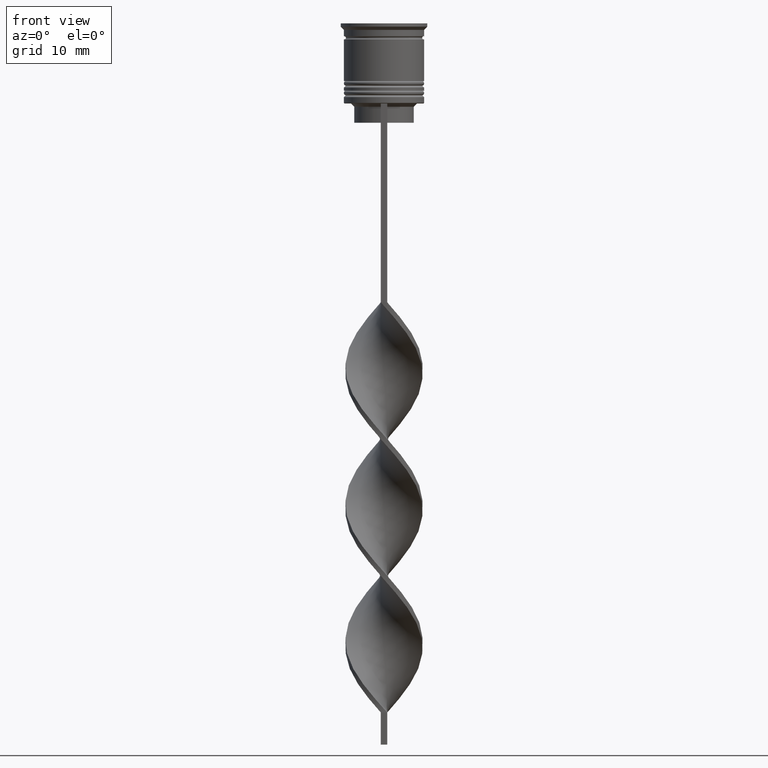
[diagram: clean part render]
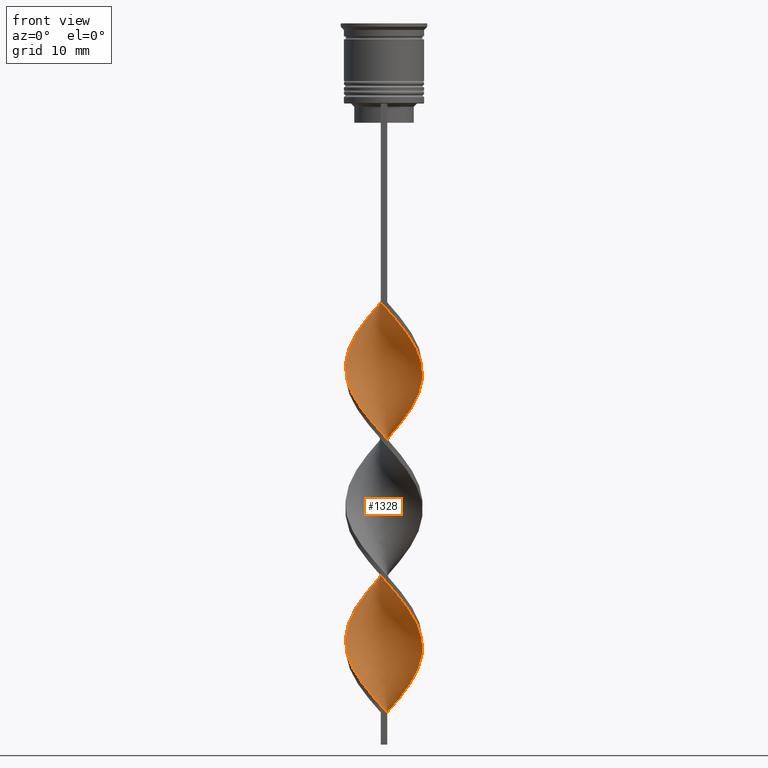
[diagram: same view with one face highlighted and labeled with its STEP entity id]
A machine part, front view. The second image highlights one B-rep face of the part: STEP entity #1328.
In plain terms, the highlighted face is a freeform B-spline surface patch.
Its self-contained STEP definition (entity closure, byte-faithful):
#2 = CARTESIAN_POINT ( 'NONE',  ( 5.988975108237873712, -0.9574036273986642476, -73.85897435897436480 ) ) ;
#5 = CARTESIAN_POINT ( 'NONE',  ( 0.5000000000000005551, 6.000000000000000000, -107.5000000000000000 ) ) ;
#17 = CARTESIAN_POINT ( 'NONE',  ( -5.895984904460662257, -1.219574518580964106, -97.65384615384614619 ) ) ;
#20 = CARTESIAN_POINT ( 'NONE',  ( -4.653870821996361151, -3.819880413333762714, -100.9358974358974308 ) ) ;
#21 = CARTESIAN_POINT ( 'NONE',  ( 5.221935568727516852, 2.996896547440106140, -100.9358974358974308 ) ) ;
#34 = CARTESIAN_POINT ( 'NONE',  ( 2.345611019436010469, 5.545097739941142301, -82.88461538461537259 ) ) ;
#54 = CARTESIAN_POINT ( 'NONE',  ( 4.190053366537511259, 4.384962638200768481, -80.42307692307691980 ) ) ;
#69 = CARTESIAN_POINT ( 'NONE',  ( 4.653870821996362039, 3.819880413333761826, -79.60256410256410220 ) ) ;
#75 = CARTESIAN_POINT ( 'NONE',  ( -0.4999999999999997780, -6.000000000000000000, -43.50000000000000000 ) ) ;
#91 = CARTESIAN_POINT ( 'NONE',  ( -3.018907784180934417, 5.260288998093236579, -68.93589743589743080 ) ) ;
#111 = CARTESIAN_POINT ( 'NONE',  ( 3.231067045089216716, 5.080374567897374405, -61.55128205128204399 ) ) ;
#125 = CARTESIAN_POINT ( 'NONE',  ( 3.018907784180934861, -5.260288998093235691, -47.60256410256408799 ) ) ;
#126 = CARTESIAN_POINT ( 'NONE',  ( 4.352991323530322809, 4.159503159906207337, -59.91025641025640880 ) ) ;
#138 = CARTESIAN_POINT ( 'NONE',  ( -5.895984904460662257, -1.219574518580964106, -54.98717948717948190 ) ) ;
#141 = CARTESIAN_POINT ( 'NONE',  ( -0.4999999999999997780, -6.000000000000000000, -43.50000000000000000 ) ) ;
#145 = CARTESIAN_POINT ( 'NONE',  ( -0.4999999999999997780, 6.000000000000000888, -43.50000000000000000 ) ) ;
#161 = CARTESIAN_POINT ( 'NONE',  ( -0.9504230770123229810, -5.945308736700090968, -63.19230769230768630 ) ) ;
#167 = CARTESIAN_POINT ( 'NONE',  ( -3.604480575359219507, 4.822625818147005639, -69.75641025641024839 ) ) ;
#170 = CARTESIAN_POINT ( 'NONE',  ( 2.345611019436006028, -5.545097739941144077, -46.78205128205127750 ) ) ;
#183 = CARTESIAN_POINT ( 'NONE',  ( -4.858046446425393405, 3.630954320453865680, -49.24358974358973740 ) ) ;
#198 = CARTESIAN_POINT ( 'NONE',  ( 1.921364894438374549, 5.705993072412533174, -105.8589743589743506 ) ) ;
#200 = CARTESIAN_POINT ( 'NONE',  ( 3.604480575359220396, -4.822625818147004750, -48.42307692307691269 ) ) ;
#222 = CARTESIAN_POINT ( 'NONE',  ( 0.2285318993335633819, -6.060710991611129472, -86.98717948717948900 ) ) ;
#224 = CARTESIAN_POINT ( 'NONE',  ( -5.585824691029640299, -2.362838774426345712, -78.78205128205127039 ) ) ;
#234 = CARTESIAN_POINT ( 'NONE',  ( -3.018907784180935305, -5.260288998093234802, -103.3974358974358836 ) ) ;
#237 = CARTESIAN_POINT ( 'NONE',  ( 3.018907784180934861, -5.260288998093235691, -90.26923076923075939 ) ) ;
#238 = CARTESIAN_POINT ( 'NONE',  ( -1.228531899333566768, -5.939289008388869640, -85.34615384615385381 ) ) ;
#248 = CARTESIAN_POINT ( 'NONE',  ( 4.352991323530320145, -4.159503159906210001, -69.75641025641024839 ) ) ;
#251 = CARTESIAN_POINT ( 'NONE',  ( -3.231067045089215384, 5.080374567897375293, -46.78205128205127750 ) ) ;
#252 = CARTESIAN_POINT ( 'NONE',  ( 4.352991323530322809, 4.159503159906207337, -102.5769230769230660 ) ) ;
#262 = CARTESIAN_POINT ( 'NONE',  ( 2.345611019436010469, 5.545097739941142301, -82.88461538461537259 ) ) ;
#266 = CARTESIAN_POINT ( 'NONE',  ( -5.895984904460662257, 1.219574518580968325, -74.67948717948718240 ) ) ;
#285 = CARTESIAN_POINT ( 'NONE',  ( -5.221935568727515964, 2.996896547440107916, -92.73076923076922640 ) ) ;
#286 = CARTESIAN_POINT ( 'NONE',  ( 5.432795012591220107, -2.595137443597922200, -94.37179487179486159 ) ) ;
#359 = FACE_OUTER_BOUND ( 'NONE', #1940, .T. ) ;
#372 = CARTESIAN_POINT ( 'NONE',  ( 3.604480575359220396, -4.822625818147004750, -48.42307692307691269 ) ) ;
#394 = CARTESIAN_POINT ( 'NONE',  ( -6.044068061194097119, -0.5036723384328409825, -54.16666666666666430 ) ) ;
#399 = CARTESIAN_POINT ( 'NONE',  ( 2.345611019436006028, -5.545097739941144077, -46.78205128205127750 ) ) ;
#434 = CARTESIAN_POINT ( 'NONE',  ( 5.895984904460662257, -1.219574518580966105, -53.34615384615383959 ) ) ;
#453 = CARTESIAN_POINT ( 'NONE',  ( -4.858046446425393405, 3.630954320453865680, -49.24358974358974450 ) ) ;
#459 = CARTESIAN_POINT ( 'NONE',  ( 6.016521584715985860, 0.2268656444829105501, -97.65384615384614619 ) ) ;
#477 = CARTESIAN_POINT ( 'NONE',  ( 0.5000000000000005551, 6.000000000000000000, -107.5000000000000000 ) ) ;
#491 = CARTESIAN_POINT ( 'NONE',  ( -4.653870821996361151, -3.819880413333762714, -100.9358974358974308 ) ) ;
#495 = CARTESIAN_POINT ( 'NONE',  ( 0.9504230770123207606, -5.945308736700090968, -87.80769230769230660 ) ) ;
#496 = CARTESIAN_POINT ( 'NONE',  ( 5.221935568727516852, 2.996896547440106140, -58.26923076923076650 ) ) ;
#507 = CARTESIAN_POINT ( 'NONE',  ( 6.016521584715985860, -0.2268656444829146579, -74.67948717948718240 ) ) ;
#511 = CARTESIAN_POINT ( 'NONE',  ( -0.4999999999999997780, -6.000000000000000000, -86.16666666666667140 ) ) ;
#514 = CARTESIAN_POINT ( 'NONE',  ( 1.921364894438374549, 5.705993072412533174, -63.19230769230768630 ) ) ;
#529 = CARTESIAN_POINT ( 'NONE',  ( 2.614197889543179887, -5.472697136436198484, -67.29487179487178139 ) ) ;
#540 = CARTESIAN_POINT ( 'NONE',  ( 6.044068061194097119, 0.5036723384328402053, -75.50000000000000000 ) ) ;
#544 = CARTESIAN_POINT ( 'NONE',  ( 5.787399899633756561, -1.660121200912508366, -73.03846153846153300 ) ) ;
#545 = CARTESIAN_POINT ( 'NONE',  ( -3.018907784180933973, 5.260288998093236579, -68.93589743589743080 ) ) ;
#557 = CARTESIAN_POINT ( 'NONE',  ( 1.672314254691080526, 5.829906481789052464, -83.70512820512820440 ) ) ;
#559 = CARTESIAN_POINT ( 'NONE',  ( 5.895984904460663145, 1.219574518580960998, -76.32051282051281760 ) ) ;
#561 = CARTESIAN_POINT ( 'NONE',  ( 0.2285318993335633819, -6.060710991611130360, -86.98717948717948900 ) ) ;
#597 = CARTESIAN_POINT ( 'NONE',  ( -4.190053366537507706, -4.384962638200770257, -101.7564102564102484 ) ) ;
#612 = CARTESIAN_POINT ( 'NONE',  ( -1.672314254691080304, -5.829906481789052464, -105.0384615384615330 ) ) ;
#635 =( BOUNDED_SURFACE ( )  B_SPLINE_SURFACE ( 1, 2, ( 
 ( #141, #1724, #3418, #3154, #399, #125, #372, #2581, #988, #2822, #1484, #3366, #434, #1220, #1467, #1763, #1446, #1797, #2309, #2055, #1504, #2860, #111, #2605, #1433, #3136, #3380, #2532, #2877, #704, #2567, #91, #167, #1205, #1241, #1175, #2267, #3356, #923, #2552, #2280, #1189, #2844, #935, #2018, #3100, #670, #1745, #952, #2294, #1039, #1257, #511, #222, #495, #1002, #1273, #237, #2421, #2089, #781, #2350, #3435, #2641, #2946, #1562, #459, #3451, #1306, #815, #3471, #762, #2917, #1527, #1852, #1292, #198, #2683, #477 ),
 ( #1320, #2140, #1545, #3172, #251, #745, #2626, #183, #2368, #1819, #2405, #1054, #3487, #1023, #3503, #2161, #2931, #2660, #2111, #1586, #3225, #1876, #2123, #1598, #3194, #798, #2966, #1836, #2390, #529, #3210, #2695, #1073, #3248, #2900, #3262, #544, #1904, #3297, #2747, #559, #846, #3041, #1089, #69, #54, #2474, #2242, #34, #1615, #2177, #828, #2514, #2996, #1634, #2732, #2789, #2441, #2710, #2982, #285, #1358, #1665, #1143, #2768, #2457, #1411, #1155, #1925, #1649, #20, #597, #1390, #885, #1121, #612, #1104, #1943, #3027 ) ),
 .UNSPECIFIED., .F., .F., .F. ) 
 B_SPLINE_SURFACE_WITH_KNOTS ( ( 2, 2 ),
 ( 3, 2, 2, 2, 2, 2, 2, 2, 2, 2, 2, 2, 2, 2, 2, 2, 2, 2, 2, 2, 2, 2, 2, 2, 2, 2, 2, 2, 2, 2, 2, 2, 2, 2, 2, 2, 2, 2, 2, 3 ),
 ( 0.000000000000000000, 1.000000000000000000 ),
 ( 0.000000000000000000, 0.01923076923076923184, 0.03846153846153846367, 0.05769230769230769551, 0.07692307692307692735, 0.09615384615384615918, 0.1153846153846153910, 0.1346153846153846090, 0.1538461538461538547, 0.1730769230769230727, 0.1923076923076923184, 0.2115384615384615363, 0.2307692307692307820, 0.2500000000000000000, 0.2692307692307692180, 0.2884615384615384359, 0.3076923076923077094, 0.3269230769230769273, 0.3461538461538461453, 0.3653846153846153633, 0.3846153846153846367, 0.4038461538461538547, 0.4230769230769230727, 0.4423076923076922906, 0.4615384615384615641, 0.4807692307692307820, 0.5000000000000000000, 0.5192307692307692735, 0.5384615384615384359, 0.5576923076923077094, 0.5769230769230768718, 0.5961538461538461453, 0.6153846153846154188, 0.6346153846153845812, 0.6538461538461538547, 0.6730769230769231282, 0.6923076923076922906, 0.7115384615384615641, 0.7307692307692307265, 0.7500000000000000000 ),
 .UNSPECIFIED. ) 
 GEOMETRIC_REPRESENTATION_ITEM ( )  RATIONAL_B_SPLINE_SURFACE ( (
 ( 1.000000000000000000, 0.9927088740980539727, 1.000000000000000000, 0.9927088740980539727, 1.000000000000000000, 0.9927088740980539727, 1.000000000000000000, 0.9927088740980539727, 1.000000000000000000, 0.9927088740980539727, 1.000000000000000000, 0.9927088740980539727, 1.000000000000000000, 0.9927088740980539727, 1.000000000000000000, 0.9927088740980539727, 1.000000000000000000, 0.9927088740980539727, 1.000000000000000000, 0.9927088740980539727, 1.000000000000000000, 0.9927088740980539727, 1.000000000000000000, 0.9927088740980539727, 1.000000000000000000, 0.9927088740980539727, 1.000000000000000000, 0.9927088740980539727, 1.000000000000000000, 0.9927088740980539727, 1.000000000000000000, 0.9927088740980539727, 1.000000000000000000, 0.9927088740980539727, 1.000000000000000000, 0.9927088740980539727, 1.000000000000000000, 0.9927088740980539727, 1.000000000000000000, 0.9927088740980539727, 1.000000000000000000, 0.9927088740980539727, 1.000000000000000000, 0.9927088740980539727, 1.000000000000000000, 0.9927088740980539727, 1.000000000000000000, 0.9927088740980539727, 1.000000000000000000, 0.9927088740980539727, 1.000000000000000000, 0.9927088740980539727, 1.000000000000000000, 0.9927088740980539727, 1.000000000000000000, 0.9927088740980539727, 1.000000000000000000, 0.9927088740980539727, 1.000000000000000000, 0.9927088740980539727, 1.000000000000000000, 0.9927088740980539727, 1.000000000000000000, 0.9927088740980539727, 1.000000000000000000, 0.9927088740980539727, 1.000000000000000000, 0.9927088740980539727, 1.000000000000000000, 0.9927088740980539727, 1.000000000000000000, 0.9927088740980539727, 1.000000000000000000, 0.9927088740980539727, 1.000000000000000000, 0.9927088740980539727, 1.000000000000000000, 0.9927088740980539727, 1.000000000000000000),
 ( 1.000000000000000000, 0.9927088740980539727, 1.000000000000000000, 0.9927088740980539727, 1.000000000000000000, 0.9927088740980539727, 1.000000000000000000, 0.9927088740980539727, 1.000000000000000000, 0.9927088740980539727, 1.000000000000000000, 0.9927088740980539727, 1.000000000000000000, 0.9927088740980539727, 1.000000000000000000, 0.9927088740980539727, 1.000000000000000000, 0.9927088740980539727, 1.000000000000000000, 0.9927088740980539727, 1.000000000000000000, 0.9927088740980539727, 1.000000000000000000, 0.9927088740980539727, 1.000000000000000000, 0.9927088740980539727, 1.000000000000000000, 0.9927088740980539727, 1.000000000000000000, 0.9927088740980539727, 1.000000000000000000, 0.9927088740980539727, 1.000000000000000000, 0.9927088740980539727, 1.000000000000000000, 0.9927088740980539727, 1.000000000000000000, 0.9927088740980539727, 1.000000000000000000, 0.9927088740980539727, 1.000000000000000000, 0.9927088740980539727, 1.000000000000000000, 0.9927088740980539727, 1.000000000000000000, 0.9927088740980539727, 1.000000000000000000, 0.9927088740980539727, 1.000000000000000000, 0.9927088740980539727, 1.000000000000000000, 0.9927088740980539727, 1.000000000000000000, 0.9927088740980539727, 1.000000000000000000, 0.9927088740980539727, 1.000000000000000000, 0.9927088740980539727, 1.000000000000000000, 0.9927088740980539727, 1.000000000000000000, 0.9927088740980539727, 1.000000000000000000, 0.9927088740980539727, 1.000000000000000000, 0.9927088740980539727, 1.000000000000000000, 0.9927088740980539727, 1.000000000000000000, 0.9927088740980539727, 1.000000000000000000, 0.9927088740980539727, 1.000000000000000000, 0.9927088740980539727, 1.000000000000000000, 0.9927088740980539727, 1.000000000000000000, 0.9927088740980539727, 1.000000000000000000) ) ) 
 REPRESENTATION_ITEM ( '' )  SURFACE ( )  );
#670 = CARTESIAN_POINT ( 'NONE',  ( -4.352991323530323697, -4.159503159906206449, -81.24358974358973740 ) ) ;
#689 = CARTESIAN_POINT ( 'NONE',  ( 2.614197889543183884, 5.472697136436196708, -62.37179487179486870 ) ) ;
#701 = CARTESIAN_POINT ( 'NONE',  ( -0.4999999999999997780, 6.000000000000000888, -43.50000000000000000 ) ) ;
#704 = CARTESIAN_POINT ( 'NONE',  ( -1.672314254691075641, 5.829906481789053352, -67.29487179487178139 ) ) ;
#740 = CARTESIAN_POINT ( 'NONE',  ( 2.614197889543179887, -5.472697136436198484, -67.29487179487178139 ) ) ;
#745 = CARTESIAN_POINT ( 'NONE',  ( -3.847936200635249993, 4.688051999358553878, -47.60256410256408799 ) ) ;
#747 = CARTESIAN_POINT ( 'NONE',  ( 5.117688277455213708, -3.254798188466753839, -50.88461538461537970 ) ) ;
#759 = CARTESIAN_POINT ( 'NONE',  ( 4.858046446425391629, -3.630954320453867012, -70.57692307692306599 ) ) ;
#762 = CARTESIAN_POINT ( 'NONE',  ( 4.858046446425394294, 3.630954320453863016, -101.7564102564102484 ) ) ;
#778 = CARTESIAN_POINT ( 'NONE',  ( -1.672314254691080082, -5.829906481789052464, -105.0384615384615188 ) ) ;
#781 = CARTESIAN_POINT ( 'NONE',  ( 4.653870821996360263, -3.819880413333763158, -92.73076923076922640 ) ) ;
#782 = CARTESIAN_POINT ( 'NONE',  ( -4.653870821996360263, 3.819880413333763158, -71.39743589743588359 ) ) ;
#795 = CARTESIAN_POINT ( 'NONE',  ( -0.2285318993335660742, -6.060710991611130360, -106.6794871794871824 ) ) ;
#798 = CARTESIAN_POINT ( 'NONE',  ( -0.2285318993335660742, -6.060710991611129472, -64.01282051282051100 ) ) ;
#812 = CARTESIAN_POINT ( 'NONE',  ( -4.190053366537507706, -4.384962638200771146, -101.7564102564102484 ) ) ;
#815 = CARTESIAN_POINT ( 'NONE',  ( 5.585824691029640299, 2.362838774426348376, -100.1153846153846274 ) ) ;
#816 = CARTESIAN_POINT ( 'NONE',  ( 5.988975108237873712, 0.9574036273986640255, -98.47435897435896379 ) ) ;
#828 = CARTESIAN_POINT ( 'NONE',  ( 0.2285318993335668514, 6.060710991611129472, -85.34615384615383959 ) ) ;
#829 = CARTESIAN_POINT ( 'NONE',  ( -5.988975108237874601, -0.9574036273986618051, -77.14102564102563520 ) ) ;
#846 = CARTESIAN_POINT ( 'NONE',  ( 5.747901747727230060, 1.935476698729086786, -77.14102564102563520 ) ) ;
#848 = CARTESIAN_POINT ( 'NONE',  ( 3.231067045089216716, 5.080374567897374405, -104.2179487179487012 ) ) ;
#885 = CARTESIAN_POINT ( 'NONE',  ( -3.018907784180935749, -5.260288998093234802, -103.3974358974358694 ) ) ;
#923 = CARTESIAN_POINT ( 'NONE',  ( -5.895984904460662257, 1.219574518580968325, -74.67948717948718240 ) ) ;
#935 = CARTESIAN_POINT ( 'NONE',  ( -5.585824691029640299, -2.362838774426346156, -78.78205128205127039 ) ) ;
#952 = CARTESIAN_POINT ( 'NONE',  ( -3.231067045089219825, -5.080374567897373517, -82.88461538461537259 ) ) ;
#954 = CARTESIAN_POINT ( 'NONE',  ( 1.672314254691077640, -5.829906481789053352, -45.96153846153845990 ) ) ;
#967 = CARTESIAN_POINT ( 'NONE',  ( 0.4999999999999990563, -6.000000000000000000, -64.83333333333332860 ) ) ;
#988 = CARTESIAN_POINT ( 'NONE',  ( 4.653870821996360263, -3.819880413333763158, -50.06410256410256210 ) ) ;
#1002 = CARTESIAN_POINT ( 'NONE',  ( 1.672314254691077862, -5.829906481789053352, -88.62820512820513841 ) ) ;
#1020 = CARTESIAN_POINT ( 'NONE',  ( -2.345611019436007361, -5.545097739941143189, -61.55128205128204399 ) ) ;
#1023 = CARTESIAN_POINT ( 'NONE',  ( -6.044068061194097119, -0.5036723384328408715, -54.16666666666665719 ) ) ;
#1039 = CARTESIAN_POINT ( 'NONE',  ( -1.921364894438377657, -5.705993072412531397, -84.52564102564103621 ) ) ;
#1040 = CARTESIAN_POINT ( 'NONE',  ( 4.653870821996360263, -3.819880413333763158, -92.73076923076922640 ) ) ;
#1051 = CARTESIAN_POINT ( 'NONE',  ( 5.895984904460663145, 1.219574518580960998, -76.32051282051281760 ) ) ;
#1054 = CARTESIAN_POINT ( 'NONE',  ( -5.988975108237873712, 0.9574036273986648027, -52.52564102564103621 ) ) ;
#1055 = CARTESIAN_POINT ( 'NONE',  ( -4.190053366537505042, 4.384962638200774698, -70.57692307692306599 ) ) ;
#1070 = CARTESIAN_POINT ( 'NONE',  ( -3.847936200635249993, 4.688051999358553878, -90.26923076923077360 ) ) ;
#1073 = CARTESIAN_POINT ( 'NONE',  ( 4.352991323530320145, -4.159503159906210001, -69.75641025641024839 ) ) ;
#1076 = CARTESIAN_POINT ( 'NONE',  ( 5.787399899633756561, 1.660121200912505479, -99.29487179487178139 ) ) ;
#1087 = CARTESIAN_POINT ( 'NONE',  ( 5.747901747727230060, 1.935476698729086786, -77.14102564102563520 ) ) ;
#1089 = CARTESIAN_POINT ( 'NONE',  ( 5.117688277455216372, 3.254798188466750730, -78.78205128205127039 ) ) ;
#1104 = CARTESIAN_POINT ( 'NONE',  ( -0.9504230770123229810, -5.945308736700090968, -105.8589743589743506 ) ) ;
#1105 = CARTESIAN_POINT ( 'NONE',  ( -5.221935568727517740, -2.996896547440105252, -79.60256410256410220 ) ) ;
#1121 = CARTESIAN_POINT ( 'NONE',  ( -2.345611019436007361, -5.545097739941143189, -104.2179487179487012 ) ) ;
#1143 = CARTESIAN_POINT ( 'NONE',  ( -5.988975108237873712, 0.9574036273986648027, -95.19230769230769340 ) ) ;
#1155 = CARTESIAN_POINT ( 'NONE',  ( -5.747901747727229171, -1.935476698729088563, -98.47435897435896379 ) ) ;
#1175 = CARTESIAN_POINT ( 'NONE',  ( -5.117688277455211932, 3.254798188466756947, -72.21794871794871540 ) ) ;
#1189 = CARTESIAN_POINT ( 'NONE',  ( -5.988975108237873712, -0.9574036273986618051, -77.14102564102563520 ) ) ;
#1200 = VERTEX_POINT ( 'NONE', #75 ) ;
#1201 = CARTESIAN_POINT ( 'NONE',  ( -1.921364894438372328, 5.705993072412534062, -45.14102564102563520 ) ) ;
#1205 = CARTESIAN_POINT ( 'NONE',  ( -4.190053366537505042, 4.384962638200773810, -70.57692307692306599 ) ) ;
#1220 = CARTESIAN_POINT ( 'NONE',  ( 6.044068061194097119, -0.5036723384328415376, -54.16666666666665719 ) ) ;
#1221 = CARTESIAN_POINT ( 'NONE',  ( 0.5000000000000000000, 2.000000000000000000, -107.5000000000000000 ) ) ;
#1238 = CARTESIAN_POINT ( 'NONE',  ( -5.988975108237873712, 0.9574036273986648027, -52.52564102564102910 ) ) ;
#1241 = CARTESIAN_POINT ( 'NONE',  ( -4.653870821996360263, 3.819880413333763158, -71.39743589743588359 ) ) ;
#1242 = ORIENTED_EDGE ( 'NONE', *, *, #2108, .F. ) ;
#1243 = CARTESIAN_POINT ( 'NONE',  ( 4.190053366537506818, -4.384962638200773810, -49.24358974358974450 ) ) ;
#1253 = CARTESIAN_POINT ( 'NONE',  ( -3.847936200635249993, 4.688051999358553878, -47.60256410256409509 ) ) ;
#1257 = CARTESIAN_POINT ( 'NONE',  ( -1.228531899333566990, -5.939289008388869640, -85.34615384615383959 ) ) ;
#1258 = ORIENTED_EDGE ( 'NONE', *, *, #1570, .T. ) ;
#1270 = CARTESIAN_POINT ( 'NONE',  ( -5.117688277455213708, -3.254798188466752951, -57.44871794871794890 ) ) ;
#1273 = CARTESIAN_POINT ( 'NONE',  ( 2.345611019436006028, -5.545097739941144077, -89.44871794871794179 ) ) ;
#1275 = CARTESIAN_POINT ( 'NONE',  ( 5.585824691029639411, 2.362838774426348376, -57.44871794871794890 ) ) ;
#1288 = CARTESIAN_POINT ( 'NONE',  ( 5.432795012591221884, 2.595137443597920868, -77.96153846153845279 ) ) ;
#1289 = VECTOR ( 'NONE', #3474, 1000.000000000000000 ) ;
#1292 = CARTESIAN_POINT ( 'NONE',  ( 2.614197889543183884, 5.472697136436196708, -105.0384615384615330 ) ) ;
#1293 = CARTESIAN_POINT ( 'NONE',  ( 5.585824691029639411, 2.362838774426348376, -100.1153846153846132 ) ) ;
#1296 = CARTESIAN_POINT ( 'NONE',  ( -0.4999999999999997780, -6.000000000000000000, -43.50000000000000000 ) ) ;
#1303 = CARTESIAN_POINT ( 'NONE',  ( -0.9504230770123229810, -5.945308736700090968, -105.8589743589743506 ) ) ;
#1306 = CARTESIAN_POINT ( 'NONE',  ( 5.787399899633756561, 1.660121200912505479, -99.29487179487178139 ) ) ;
#1307 = CARTESIAN_POINT ( 'NONE',  ( -4.352991323530323697, -4.159503159906206449, -81.24358974358973740 ) ) ;
#1320 = CARTESIAN_POINT ( 'NONE',  ( -0.4999999999999997780, 6.000000000000000000, -43.50000000000000000 ) ) ;
#1328 = ADVANCED_FACE ( 'NONE', ( #359 ), #635, .T. ) ;
#1334 = CARTESIAN_POINT ( 'NONE',  ( -5.221935568727515964, 2.996896547440107916, -92.73076923076922640 ) ) ;
#1341 = CARTESIAN_POINT ( 'NONE',  ( 1.228531899333565880, 5.939289008388869640, -64.01282051282051100 ) ) ;
#1355 = CARTESIAN_POINT ( 'NONE',  ( 5.585824691029637634, -2.362838774426352373, -72.21794871794871540 ) ) ;
#1358 = CARTESIAN_POINT ( 'NONE',  ( -5.585824691029640299, 2.362838774426349264, -93.55128205128204399 ) ) ;
#1359 = CARTESIAN_POINT ( 'NONE',  ( 4.190053366537506818, -4.384962638200773810, -91.91025641025643722 ) ) ;
#1390 = CARTESIAN_POINT ( 'NONE',  ( -3.604480575359222172, -4.822625818147002974, -102.5769230769230660 ) ) ;
#1411 = CARTESIAN_POINT ( 'NONE',  ( -5.895984904460662257, -1.219574518580964106, -97.65384615384614619 ) ) ;
#1433 = CARTESIAN_POINT ( 'NONE',  ( 1.921364894438374549, 5.705993072412533174, -63.19230769230768630 ) ) ;
#1446 = CARTESIAN_POINT ( 'NONE',  ( 5.787399899633756561, 1.660121200912505479, -56.62820512820513130 ) ) ;
#1465 = CARTESIAN_POINT ( 'NONE',  ( -4.653870821996361151, -3.819880413333762714, -58.26923076923076650 ) ) ;
#1467 = CARTESIAN_POINT ( 'NONE',  ( 6.016521584715985860, 0.2268656444829105501, -54.98717948717948190 ) ) ;
#1473 = VERTEX_POINT ( 'NONE', #2409 ) ;
#1477 = CARTESIAN_POINT ( 'NONE',  ( 0.4999999999999990563, -6.000000000000000000, -107.5000000000000000 ) ) ;
#1479 = CARTESIAN_POINT ( 'NONE',  ( -5.221935568727515964, 2.996896547440107916, -50.06410256410256210 ) ) ;
#1484 = CARTESIAN_POINT ( 'NONE',  ( 5.432795012591220107, -2.595137443597922200, -51.70512820512820440 ) ) ;
#1499 =( BOUNDED_CURVE ( )  B_SPLINE_CURVE ( 2, ( #701, #3415, #1201, #2639, #3151, #1253, #3168, #453, #1479, #1816, #3446, #1238, #2599, #394, #138, #2305, #2578, #1270, #1465, #3431, #1524, #2915, #1020, #2330, #161, #3395, #967, #2052, #1501, #740, #2366, #2138, #248, #759, #2417, #1355, #2707, #2, #507, #540, #1051, #1087, #1288, #1850, #3500, #1833, #2994, #3246, #262, #557, #2455, #1583, #1611, #2928, #2944, #2730, #2122, #1070, #2388, #3468, #1334, #2157, #3223, #3192, #2679, #2437, #17, #2693, #3484, #3207, #491, #812, #2963, #234, #1887, #778, #1303, #795, #1630 ),
 .UNSPECIFIED., .F., .T. ) 
 B_SPLINE_CURVE_WITH_KNOTS ( ( 3, 2, 2, 2, 2, 2, 2, 2, 2, 2, 2, 2, 2, 2, 2, 2, 2, 2, 2, 2, 2, 2, 2, 2, 2, 2, 2, 2, 2, 2, 2, 2, 2, 2, 2, 2, 2, 2, 2, 3 ),
 ( 0.000000000000000000, 0.01923076923076923184, 0.03846153846153846367, 0.05769230769230768857, 0.07692307692307692735, 0.09615384615384615918, 0.1153846153846153771, 0.1346153846153846090, 0.1538461538461538547, 0.1730769230769230449, 0.1923076923076923184, 0.2115384615384615363, 0.2307692307692307543, 0.2500000000000000000, 0.2692307692307692180, 0.2884615384615384359, 0.3076923076923077094, 0.3269230769230769273, 0.3461538461538460898, 0.3653846153846153633, 0.3846153846153846367, 0.4038461538461539102, 0.4230769230769230727, 0.4423076923076922906, 0.4615384615384615086, 0.4807692307692307820, 0.5000000000000000000, 0.5192307692307692735, 0.5384615384615384359, 0.5576923076923077094, 0.5769230769230768718, 0.5961538461538461453, 0.6153846153846154188, 0.6346153846153845812, 0.6538461538461538547, 0.6730769230769230171, 0.6923076923076921796, 0.7115384615384615641, 0.7307692307692307265, 0.7500000000000000000 ),
 .UNSPECIFIED. ) 
 CURVE ( )  GEOMETRIC_REPRESENTATION_ITEM ( )  RATIONAL_B_SPLINE_CURVE ( ( 1.000000000000000000, 0.9927088740980539727, 1.000000000000000000, 0.9927088740980539727, 1.000000000000000000, 0.9927088740980539727, 1.000000000000000000, 0.9927088740980539727, 1.000000000000000000, 0.9927088740980539727, 1.000000000000000000, 0.9927088740980539727, 1.000000000000000000, 0.9927088740980539727, 1.000000000000000000, 0.9927088740980539727, 1.000000000000000000, 0.9927088740980539727, 1.000000000000000000, 0.9927088740980539727, 1.000000000000000000, 0.9927088740980539727, 1.000000000000000000, 0.9927088740980539727, 1.000000000000000000, 0.9927088740980539727, 1.000000000000000000, 0.9927088740980539727, 1.000000000000000000, 0.9927088740980539727, 1.000000000000000000, 0.9927088740980539727, 1.000000000000000000, 0.9927088740980539727, 1.000000000000000000, 0.9927088740980539727, 1.000000000000000000, 0.9927088740980539727, 1.000000000000000000, 0.9927088740980539727, 1.000000000000000000, 0.9927088740980539727, 1.000000000000000000, 0.9927088740980539727, 1.000000000000000000, 0.9927088740980539727, 1.000000000000000000, 0.9927088740980539727, 1.000000000000000000, 0.9927088740980539727, 1.000000000000000000, 0.9927088740980539727, 1.000000000000000000, 0.9927088740980539727, 1.000000000000000000, 0.9927088740980539727, 1.000000000000000000, 0.9927088740980539727, 1.000000000000000000, 0.9927088740980539727, 1.000000000000000000, 0.9927088740980539727, 1.000000000000000000, 0.9927088740980539727, 1.000000000000000000, 0.9927088740980539727, 1.000000000000000000, 0.9927088740980539727, 1.000000000000000000, 0.9927088740980539727, 1.000000000000000000, 0.9927088740980539727, 1.000000000000000000, 0.9927088740980539727, 1.000000000000000000, 0.9927088740980539727, 1.000000000000000000, 0.9927088740980539727, 1.000000000000000000 ) ) 
 REPRESENTATION_ITEM ( '' )  );
#1501 = CARTESIAN_POINT ( 'NONE',  ( 1.921364894438370330, -5.705993072412534062, -66.47435897435896379 ) ) ;
#1504 = CARTESIAN_POINT ( 'NONE',  ( 4.352991323530322809, 4.159503159906207337, -59.91025641025640880 ) ) ;
#1524 = CARTESIAN_POINT ( 'NONE',  ( -3.604480575359222172, -4.822625818147002974, -59.91025641025640880 ) ) ;
#1527 = CARTESIAN_POINT ( 'NONE',  ( 3.847936200635250437, 4.688051999358552990, -103.3974358974358694 ) ) ;
#1545 = CARTESIAN_POINT ( 'NONE',  ( -1.921364894438372328, 5.705993072412534062, -45.14102564102563520 ) ) ;
#1562 = CARTESIAN_POINT ( 'NONE',  ( 6.044068061194097119, -0.5036723384328415376, -96.83333333333332860 ) ) ;
#1564 = CARTESIAN_POINT ( 'NONE',  ( -1.921364894438377657, -5.705993072412531397, -84.52564102564103621 ) ) ;
#1570 = EDGE_CURVE ( 'NONE', #1200, #2014, #3492, .T. ) ;
#1583 = CARTESIAN_POINT ( 'NONE',  ( 0.2285318993335668514, 6.060710991611130360, -85.34615384615385381 ) ) ;
#1586 = CARTESIAN_POINT ( 'NONE',  ( -4.190053366537507706, -4.384962638200770257, -59.08974358974359120 ) ) ;
#1587 = CARTESIAN_POINT ( 'NONE',  ( -3.847936200635251325, -4.688051999358552990, -82.06410256410255499 ) ) ;
#1598 = CARTESIAN_POINT ( 'NONE',  ( -1.672314254691080304, -5.829906481789052464, -62.37179487179486870 ) ) ;
#1599 = CARTESIAN_POINT ( 'NONE',  ( 2.614197889543183884, 5.472697136436196708, -105.0384615384615188 ) ) ;
#1611 = CARTESIAN_POINT ( 'NONE',  ( -0.4999999999999997780, 6.000000000000000000, -86.16666666666667140 ) ) ;
#1615 = CARTESIAN_POINT ( 'NONE',  ( 1.672314254691080748, 5.829906481789052464, -83.70512820512820440 ) ) ;
#1616 = CARTESIAN_POINT ( 'NONE',  ( 3.604480575359220396, -4.822625818147004750, -91.08974358974359120 ) ) ;
#1630 = CARTESIAN_POINT ( 'NONE',  ( 0.4999999999999990563, -6.000000000000000000, -107.5000000000000000 ) ) ;
#1634 = CARTESIAN_POINT ( 'NONE',  ( -1.921364894438372328, 5.705993072412534062, -87.80769230769230660 ) ) ;
#1635 = CARTESIAN_POINT ( 'NONE',  ( 0.9504230770123207606, -5.945308736700090968, -87.80769230769230660 ) ) ;
#1649 = CARTESIAN_POINT ( 'NONE',  ( -5.117688277455213708, -3.254798188466752951, -100.1153846153846274 ) ) ;
#1665 = CARTESIAN_POINT ( 'NONE',  ( -5.787399899633756561, 1.660121200912507922, -94.37179487179486159 ) ) ;
#1724 = CARTESIAN_POINT ( 'NONE',  ( 0.2285318993335633819, -6.060710991611129472, -44.32051282051282470 ) ) ;
#1745 = CARTESIAN_POINT ( 'NONE',  ( -3.847936200635250881, -4.688051999358552990, -82.06410256410255499 ) ) ;
#1763 = CARTESIAN_POINT ( 'NONE',  ( 5.988975108237873712, 0.9574036273986641365, -55.80769230769230660 ) ) ;
#1781 = CARTESIAN_POINT ( 'NONE',  ( 0.5000000000000005551, 6.000000000000000000, -107.5000000000000000 ) ) ;
#1797 = CARTESIAN_POINT ( 'NONE',  ( 5.585824691029640299, 2.362838774426348376, -57.44871794871794890 ) ) ;
#1799 = CARTESIAN_POINT ( 'NONE',  ( 6.016521584715985860, 0.2268656444829105501, -54.98717948717948190 ) ) ;
#1811 = ORIENTED_EDGE ( 'NONE', *, *, #2086, .F. ) ;
#1816 = CARTESIAN_POINT ( 'NONE',  ( -5.585824691029639411, 2.362838774426349264, -50.88461538461537970 ) ) ;
#1819 = CARTESIAN_POINT ( 'NONE',  ( -5.585824691029640299, 2.362838774426349264, -50.88461538461538680 ) ) ;
#1821 = CARTESIAN_POINT ( 'NONE',  ( 5.988975108237873712, 0.9574036273986640255, -55.80769230769230660 ) ) ;
#1833 = CARTESIAN_POINT ( 'NONE',  ( 4.190053366537511259, 4.384962638200769369, -80.42307692307691980 ) ) ;
#1836 = CARTESIAN_POINT ( 'NONE',  ( 1.228531899333561661, -5.939289008388869640, -65.65384615384614619 ) ) ;
#1837 = CARTESIAN_POINT ( 'NONE',  ( 3.018907784180934417, -5.260288998093235691, -47.60256410256409509 ) ) ;
#1850 = CARTESIAN_POINT ( 'NONE',  ( 5.117688277455216372, 3.254798188466750286, -78.78205128205127039 ) ) ;
#1852 = CARTESIAN_POINT ( 'NONE',  ( 3.231067045089216716, 5.080374567897374405, -104.2179487179487012 ) ) ;
#1853 = CARTESIAN_POINT ( 'NONE',  ( 0.5000000000000005551, 6.000000000000000000, -64.83333333333332860 ) ) ;
#1876 = CARTESIAN_POINT ( 'NONE',  ( -3.018907784180935749, -5.260288998093234802, -60.73076923076922640 ) ) ;
#1877 = CARTESIAN_POINT ( 'NONE',  ( -0.9504230770123187622, 5.945308736700090968, -66.47435897435896379 ) ) ;
#1887 = CARTESIAN_POINT ( 'NONE',  ( -2.345611019436007361, -5.545097739941143189, -104.2179487179487012 ) ) ;
#1891 = CARTESIAN_POINT ( 'NONE',  ( 5.747901747727229171, -1.935476698729089451, -95.19230769230769340 ) ) ;
#1904 = CARTESIAN_POINT ( 'NONE',  ( 5.988975108237873712, -0.9574036273986643586, -73.85897435897436480 ) ) ;
#1905 = CARTESIAN_POINT ( 'NONE',  ( -0.2285318993335620774, 6.060710991611130360, -65.65384615384614619 ) ) ;
#1925 = CARTESIAN_POINT ( 'NONE',  ( -5.432795012591221884, -2.595137443597919980, -99.29487179487178139 ) ) ;
#1927 = CARTESIAN_POINT ( 'NONE',  ( 6.016521584715985860, 0.2268656444829105501, -97.65384615384614619 ) ) ;
#1940 = EDGE_LOOP ( 'NONE', ( #1258, #3143, #1811, #1242 ) ) ;
#1943 = CARTESIAN_POINT ( 'NONE',  ( -0.2285318993335660742, -6.060710991611129472, -106.6794871794871682 ) ) ;
#2014 = VERTEX_POINT ( 'NONE', #145 ) ;
#2018 = CARTESIAN_POINT ( 'NONE',  ( -5.221935568727517740, -2.996896547440105252, -79.60256410256410220 ) ) ;
#2038 = CARTESIAN_POINT ( 'NONE',  ( 3.847936200635250881, 4.688051999358552990, -60.73076923076922640 ) ) ;
#2052 = CARTESIAN_POINT ( 'NONE',  ( 1.228531899333561661, -5.939289008388869640, -65.65384615384614619 ) ) ;
#2055 = CARTESIAN_POINT ( 'NONE',  ( 4.858046446425394294, 3.630954320453863016, -59.08974358974359120 ) ) ;
#2072 = CARTESIAN_POINT ( 'NONE',  ( 6.044068061194097119, -0.5036723384328415376, -54.16666666666666430 ) ) ;
#2086 = EDGE_CURVE ( 'NONE', #1473, #2617, #2331, .T. ) ;
#2089 = CARTESIAN_POINT ( 'NONE',  ( 4.190053366537506818, -4.384962638200772922, -91.91025641025643722 ) ) ;
#2091 = CARTESIAN_POINT ( 'NONE',  ( 0.4999999999999995559, -2.000000000000000000, -107.5000000000000000 ) ) ;
#2108 = EDGE_CURVE ( 'NONE', #1200, #1473, #2488, .T. ) ;
#2111 = CARTESIAN_POINT ( 'NONE',  ( -4.653870821996361151, -3.819880413333762714, -58.26923076923076650 ) ) ;
#2112 = CARTESIAN_POINT ( 'NONE',  ( 5.747901747727229171, -1.935476698729089451, -52.52564102564102910 ) ) ;
#2122 = CARTESIAN_POINT ( 'NONE',  ( -3.231067045089215384, 5.080374567897375293, -89.44871794871794179 ) ) ;
#2123 = CARTESIAN_POINT ( 'NONE',  ( -2.345611019436007361, -5.545097739941143189, -61.55128205128204399 ) ) ;
#2138 = CARTESIAN_POINT ( 'NONE',  ( 3.847936200635249548, -4.688051999358554767, -68.93589743589743080 ) ) ;
#2140 = CARTESIAN_POINT ( 'NONE',  ( -1.228531899333563215, 5.939289008388869640, -44.32051282051282470 ) ) ;
#2141 = CARTESIAN_POINT ( 'NONE',  ( -5.747901747727229171, 1.935476698729089229, -73.85897435897436480 ) ) ;
#2157 = CARTESIAN_POINT ( 'NONE',  ( -5.585824691029639411, 2.362838774426349264, -93.55128205128204399 ) ) ;
#2161 = CARTESIAN_POINT ( 'NONE',  ( -5.747901747727229171, -1.935476698729088563, -55.80769230769230660 ) ) ;
#2162 = CARTESIAN_POINT ( 'NONE',  ( -5.787399899633756561, -1.660121200912506367, -77.96153846153845279 ) ) ;
#2177 = CARTESIAN_POINT ( 'NONE',  ( 0.9504230770123263117, 5.945308736700090968, -84.52564102564103621 ) ) ;
#2178 = CARTESIAN_POINT ( 'NONE',  ( 5.117688277455213708, -3.254798188466753839, -93.55128205128204399 ) ) ;
#2191 = CARTESIAN_POINT ( 'NONE',  ( -1.672314254691075641, 5.829906481789053352, -67.29487179487178139 ) ) ;
#2242 = CARTESIAN_POINT ( 'NONE',  ( 3.018907784180936194, 5.260288998093234802, -82.06410256410255499 ) ) ;
#2267 = CARTESIAN_POINT ( 'NONE',  ( -5.432795012591220107, 2.595137443597922644, -73.03846153846153300 ) ) ;
#2280 = CARTESIAN_POINT ( 'NONE',  ( -6.016521584715984972, -0.2268656444829071639, -76.32051282051281760 ) ) ;
#2294 = CARTESIAN_POINT ( 'NONE',  ( -2.614197889543184328, -5.472697136436196708, -83.70512820512820440 ) ) ;
#2305 = CARTESIAN_POINT ( 'NONE',  ( -5.747901747727229171, -1.935476698729088785, -55.80769230769230660 ) ) ;
#2309 = CARTESIAN_POINT ( 'NONE',  ( 5.221935568727516852, 2.996896547440106140, -58.26923076923076650 ) ) ;
#2330 = CARTESIAN_POINT ( 'NONE',  ( -1.672314254691080082, -5.829906481789052464, -62.37179487179486870 ) ) ;
#2331 = B_SPLINE_CURVE_WITH_KNOTS ( 'NONE', 3,
 ( #1781, #1221, #2091, #2861 ),
 .UNSPECIFIED., .F., .F.,
 ( 4, 4 ),
 ( 0.000000000000000000, 1.000000000000000000 ),
 .UNSPECIFIED. ) ;
#2334 = CARTESIAN_POINT ( 'NONE',  ( 4.653870821996360263, -3.819880413333763158, -50.06410256410256210 ) ) ;
#2350 = CARTESIAN_POINT ( 'NONE',  ( 5.117688277455213708, -3.254798188466753839, -93.55128205128204399 ) ) ;
#2366 = CARTESIAN_POINT ( 'NONE',  ( 3.231067045089215384, -5.080374567897375293, -68.11538461538459899 ) ) ;
#2368 = CARTESIAN_POINT ( 'NONE',  ( -5.221935568727515964, 2.996896547440107916, -50.06410256410256210 ) ) ;
#2388 = CARTESIAN_POINT ( 'NONE',  ( -4.352991323530321033, 4.159503159906209113, -91.08974358974359120 ) ) ;
#2390 = CARTESIAN_POINT ( 'NONE',  ( 1.921364894438370330, -5.705993072412534062, -66.47435897435896379 ) ) ;
#2391 = CARTESIAN_POINT ( 'NONE',  ( 3.847936200635250881, 4.688051999358552990, -103.3974358974358836 ) ) ;
#2401 = EDGE_CURVE ( 'NONE', #2014, #2617, #1499, .T. ) ;
#2405 = CARTESIAN_POINT ( 'NONE',  ( -5.787399899633756561, 1.660121200912507922, -51.70512820512820440 ) ) ;
#2406 = CARTESIAN_POINT ( 'NONE',  ( -6.044068061194097119, 0.5036723384328423148, -75.50000000000000000 ) ) ;
#2409 = CARTESIAN_POINT ( 'NONE',  ( 0.5000000000000005551, 6.000000000000000000, -107.5000000000000000 ) ) ;
#2417 = CARTESIAN_POINT ( 'NONE',  ( 5.221935568727515964, -2.996896547440107916, -71.39743589743588359 ) ) ;
#2421 = CARTESIAN_POINT ( 'NONE',  ( 3.604480575359220396, -4.822625818147004750, -91.08974358974359120 ) ) ;
#2422 = CARTESIAN_POINT ( 'NONE',  ( 2.345611019436006028, -5.545097739941144077, -89.44871794871794179 ) ) ;
#2437 = CARTESIAN_POINT ( 'NONE',  ( -6.044068061194097119, -0.5036723384328409825, -96.83333333333332860 ) ) ;
#2441 = CARTESIAN_POINT ( 'NONE',  ( -3.847936200635249993, 4.688051999358553878, -90.26923076923075939 ) ) ;
#2442 = CARTESIAN_POINT ( 'NONE',  ( 1.921364894438374549, 5.705993072412533174, -105.8589743589743506 ) ) ;
#2455 = CARTESIAN_POINT ( 'NONE',  ( 0.9504230770123263117, 5.945308736700090968, -84.52564102564103621 ) ) ;
#2457 = CARTESIAN_POINT ( 'NONE',  ( -6.044068061194097119, -0.5036723384328408715, -96.83333333333332860 ) ) ;
#2458 = CARTESIAN_POINT ( 'NONE',  ( 6.044068061194097119, -0.5036723384328415376, -96.83333333333332860 ) ) ;
#2474 = CARTESIAN_POINT ( 'NONE',  ( 3.604480575359223060, 4.822625818147002086, -81.24358974358973740 ) ) ;
#2488 =( BOUNDED_CURVE ( )  B_SPLINE_CURVE ( 2, ( #3436, #3138, #2608, #954, #170, #1837, #200, #1243, #2334, #747, #3419, #2112, #2932, #2072, #1799, #1821, #2919, #1275, #496, #2568, #126, #2038, #3119, #689, #514, #1341, #1853, #1905, #1877, #2191, #3249, #545, #3013, #1055, #782, #3263, #2983, #2141, #266, #2406, #2947, #829, #2162, #224, #1105, #3504, #1307, #1587, #3277, #2684, #1564, #238, #2997, #561, #1635, #2661, #2422, #2733, #1616, #1359, #1040, #2178, #286, #1891, #3489, #2458, #1927, #816, #1076, #1293, #21, #2712, #252, #2391, #848, #1599, #2442, #3472, #5 ),
 .UNSPECIFIED., .F., .T. ) 
 B_SPLINE_CURVE_WITH_KNOTS ( ( 3, 2, 2, 2, 2, 2, 2, 2, 2, 2, 2, 2, 2, 2, 2, 2, 2, 2, 2, 2, 2, 2, 2, 2, 2, 2, 2, 2, 2, 2, 2, 2, 2, 2, 2, 2, 2, 2, 2, 3 ),
 ( 0.000000000000000000, 0.01923076923076923184, 0.03846153846153846367, 0.05769230769230768857, 0.07692307692307692735, 0.09615384615384615918, 0.1153846153846153771, 0.1346153846153846090, 0.1538461538461538547, 0.1730769230769230449, 0.1923076923076923184, 0.2115384615384615363, 0.2307692307692307543, 0.2500000000000000000, 0.2692307692307692180, 0.2884615384615384359, 0.3076923076923077094, 0.3269230769230769273, 0.3461538461538460898, 0.3653846153846153633, 0.3846153846153846367, 0.4038461538461539102, 0.4230769230769230727, 0.4423076923076922906, 0.4615384615384615086, 0.4807692307692307820, 0.5000000000000000000, 0.5192307692307692735, 0.5384615384615384359, 0.5576923076923077094, 0.5769230769230768718, 0.5961538461538461453, 0.6153846153846154188, 0.6346153846153845812, 0.6538461538461538547, 0.6730769230769230171, 0.6923076923076921796, 0.7115384615384615641, 0.7307692307692307265, 0.7500000000000000000 ),
 .UNSPECIFIED. ) 
 CURVE ( )  GEOMETRIC_REPRESENTATION_ITEM ( )  RATIONAL_B_SPLINE_CURVE ( ( 1.000000000000000000, 0.9927088740980539727, 1.000000000000000000, 0.9927088740980539727, 1.000000000000000000, 0.9927088740980539727, 1.000000000000000000, 0.9927088740980539727, 1.000000000000000000, 0.9927088740980539727, 1.000000000000000000, 0.9927088740980539727, 1.000000000000000000, 0.9927088740980539727, 1.000000000000000000, 0.9927088740980539727, 1.000000000000000000, 0.9927088740980539727, 1.000000000000000000, 0.9927088740980539727, 1.000000000000000000, 0.9927088740980539727, 1.000000000000000000, 0.9927088740980539727, 1.000000000000000000, 0.9927088740980539727, 1.000000000000000000, 0.9927088740980539727, 1.000000000000000000, 0.9927088740980539727, 1.000000000000000000, 0.9927088740980539727, 1.000000000000000000, 0.9927088740980539727, 1.000000000000000000, 0.9927088740980539727, 1.000000000000000000, 0.9927088740980539727, 1.000000000000000000, 0.9927088740980539727, 1.000000000000000000, 0.9927088740980539727, 1.000000000000000000, 0.9927088740980539727, 1.000000000000000000, 0.9927088740980539727, 1.000000000000000000, 0.9927088740980539727, 1.000000000000000000, 0.9927088740980539727, 1.000000000000000000, 0.9927088740980539727, 1.000000000000000000, 0.9927088740980539727, 1.000000000000000000, 0.9927088740980539727, 1.000000000000000000, 0.9927088740980539727, 1.000000000000000000, 0.9927088740980539727, 1.000000000000000000, 0.9927088740980539727, 1.000000000000000000, 0.9927088740980539727, 1.000000000000000000, 0.9927088740980539727, 1.000000000000000000, 0.9927088740980539727, 1.000000000000000000, 0.9927088740980539727, 1.000000000000000000, 0.9927088740980539727, 1.000000000000000000, 0.9927088740980539727, 1.000000000000000000, 0.9927088740980539727, 1.000000000000000000, 0.9927088740980539727, 1.000000000000000000 ) ) 
 REPRESENTATION_ITEM ( '' )  );
#2514 = CARTESIAN_POINT ( 'NONE',  ( -0.4999999999999997780, 6.000000000000000000, -86.16666666666667140 ) ) ;
#2532 = CARTESIAN_POINT ( 'NONE',  ( -0.2285318993335620774, 6.060710991611129472, -65.65384615384614619 ) ) ;
#2552 = CARTESIAN_POINT ( 'NONE',  ( -6.044068061194097119, 0.5036723384328423148, -75.49999999999998579 ) ) ;
#2567 = CARTESIAN_POINT ( 'NONE',  ( -2.345611019436006028, 5.545097739941144077, -68.11538461538459899 ) ) ;
#2568 = CARTESIAN_POINT ( 'NONE',  ( 4.858046446425394294, 3.630954320453863016, -59.08974358974358410 ) ) ;
#2578 = CARTESIAN_POINT ( 'NONE',  ( -5.432795012591221884, -2.595137443597919980, -56.62820512820513130 ) ) ;
#2581 = CARTESIAN_POINT ( 'NONE',  ( 4.190053366537506818, -4.384962638200772922, -49.24358974358973740 ) ) ;
#2599 = CARTESIAN_POINT ( 'NONE',  ( -6.016521584715985860, 0.2268656444829126040, -53.34615384615383959 ) ) ;
#2605 = CARTESIAN_POINT ( 'NONE',  ( 2.614197889543183884, 5.472697136436196708, -62.37179487179486870 ) ) ;
#2608 = CARTESIAN_POINT ( 'NONE',  ( 0.9504230770123207606, -5.945308736700090968, -45.14102564102563520 ) ) ;
#2617 = VERTEX_POINT ( 'NONE', #1477 ) ;
#2626 = CARTESIAN_POINT ( 'NONE',  ( -4.352991323530321033, 4.159503159906209113, -48.42307692307691269 ) ) ;
#2639 = CARTESIAN_POINT ( 'NONE',  ( -2.614197889543182107, 5.472697136436197596, -45.96153846153845990 ) ) ;
#2641 = CARTESIAN_POINT ( 'NONE',  ( 5.747901747727229171, -1.935476698729089451, -95.19230769230769340 ) ) ;
#2660 = CARTESIAN_POINT ( 'NONE',  ( -5.117688277455213708, -3.254798188466752951, -57.44871794871794890 ) ) ;
#2661 = CARTESIAN_POINT ( 'NONE',  ( 1.672314254691077640, -5.829906481789053352, -88.62820512820512420 ) ) ;
#2679 = CARTESIAN_POINT ( 'NONE',  ( -6.016521584715985860, 0.2268656444829126040, -96.01282051282051100 ) ) ;
#2683 = CARTESIAN_POINT ( 'NONE',  ( 1.228531899333566102, 5.939289008388869640, -106.6794871794871682 ) ) ;
#2684 = CARTESIAN_POINT ( 'NONE',  ( -2.614197889543184328, -5.472697136436196708, -83.70512820512820440 ) ) ;
#2693 = CARTESIAN_POINT ( 'NONE',  ( -5.747901747727229171, -1.935476698729088785, -98.47435897435896379 ) ) ;
#2695 = CARTESIAN_POINT ( 'NONE',  ( 3.847936200635249548, -4.688051999358554767, -68.93589743589743080 ) ) ;
#2707 = CARTESIAN_POINT ( 'NONE',  ( 5.787399899633756561, -1.660121200912508366, -73.03846153846153300 ) ) ;
#2710 = CARTESIAN_POINT ( 'NONE',  ( -4.352991323530321033, 4.159503159906209113, -91.08974358974359120 ) ) ;
#2712 = CARTESIAN_POINT ( 'NONE',  ( 4.858046446425394294, 3.630954320453863016, -101.7564102564102484 ) ) ;
#2730 = CARTESIAN_POINT ( 'NONE',  ( -2.614197889543182107, 5.472697136436197596, -88.62820512820512420 ) ) ;
#2732 = CARTESIAN_POINT ( 'NONE',  ( -2.614197889543182107, 5.472697136436197596, -88.62820512820513841 ) ) ;
#2733 = CARTESIAN_POINT ( 'NONE',  ( 3.018907784180934417, -5.260288998093235691, -90.26923076923077360 ) ) ;
#2747 = CARTESIAN_POINT ( 'NONE',  ( 6.044068061194097119, 0.5036723384328400943, -75.49999999999998579 ) ) ;
#2768 = CARTESIAN_POINT ( 'NONE',  ( -6.016521584715985860, 0.2268656444829126040, -96.01282051282051100 ) ) ;
#2789 = CARTESIAN_POINT ( 'NONE',  ( -3.231067045089215384, 5.080374567897375293, -89.44871794871794179 ) ) ;
#2822 = CARTESIAN_POINT ( 'NONE',  ( 5.117688277455213708, -3.254798188466753839, -50.88461538461538680 ) ) ;
#2844 = CARTESIAN_POINT ( 'NONE',  ( -5.787399899633756561, -1.660121200912506367, -77.96153846153845279 ) ) ;
#2860 = CARTESIAN_POINT ( 'NONE',  ( 3.847936200635250437, 4.688051999358552990, -60.73076923076922640 ) ) ;
#2861 = CARTESIAN_POINT ( 'NONE',  ( 0.4999999999999990563, -6.000000000000000000, -107.5000000000000000 ) ) ;
#2877 = CARTESIAN_POINT ( 'NONE',  ( -0.9504230770123187622, 5.945308736700090968, -66.47435897435896379 ) ) ;
#2900 = CARTESIAN_POINT ( 'NONE',  ( 5.221935568727515964, -2.996896547440107916, -71.39743589743588359 ) ) ;
#2915 = CARTESIAN_POINT ( 'NONE',  ( -3.018907784180935305, -5.260288998093234802, -60.73076923076922640 ) ) ;
#2917 = CARTESIAN_POINT ( 'NONE',  ( 4.352991323530322809, 4.159503159906207337, -102.5769230769230660 ) ) ;
#2919 = CARTESIAN_POINT ( 'NONE',  ( 5.787399899633756561, 1.660121200912505479, -56.62820512820513130 ) ) ;
#2928 = CARTESIAN_POINT ( 'NONE',  ( -1.228531899333562993, 5.939289008388869640, -86.98717948717948900 ) ) ;
#2931 = CARTESIAN_POINT ( 'NONE',  ( -5.432795012591221884, -2.595137443597919980, -56.62820512820513130 ) ) ;
#2932 = CARTESIAN_POINT ( 'NONE',  ( 5.895984904460662257, -1.219574518580966105, -53.34615384615383959 ) ) ;
#2944 = CARTESIAN_POINT ( 'NONE',  ( -1.921364894438372328, 5.705993072412534062, -87.80769230769230660 ) ) ;
#2946 = CARTESIAN_POINT ( 'NONE',  ( 5.895984904460662257, -1.219574518580966105, -96.01282051282051100 ) ) ;
#2947 = CARTESIAN_POINT ( 'NONE',  ( -6.016521584715984972, -0.2268656444829071639, -76.32051282051281760 ) ) ;
#2963 = CARTESIAN_POINT ( 'NONE',  ( -3.604480575359222172, -4.822625818147002974, -102.5769230769230660 ) ) ;
#2966 = CARTESIAN_POINT ( 'NONE',  ( 0.4999999999999990563, -6.000000000000000000, -64.83333333333332860 ) ) ;
#2982 = CARTESIAN_POINT ( 'NONE',  ( -4.858046446425393405, 3.630954320453865680, -91.91025641025643722 ) ) ;
#2983 = CARTESIAN_POINT ( 'NONE',  ( -5.432795012591220107, 2.595137443597922644, -73.03846153846153300 ) ) ;
#2994 = CARTESIAN_POINT ( 'NONE',  ( 3.604480575359223060, 4.822625818147002086, -81.24358974358973740 ) ) ;
#2996 = CARTESIAN_POINT ( 'NONE',  ( -1.228531899333563215, 5.939289008388869640, -86.98717948717948900 ) ) ;
#2997 = CARTESIAN_POINT ( 'NONE',  ( -0.4999999999999997780, -6.000000000000000000, -86.16666666666667140 ) ) ;
#3013 = CARTESIAN_POINT ( 'NONE',  ( -3.604480575359219507, 4.822625818147005639, -69.75641025641024839 ) ) ;
#3027 = CARTESIAN_POINT ( 'NONE',  ( 0.4999999999999990563, -6.000000000000000000, -107.5000000000000000 ) ) ;
#3041 = CARTESIAN_POINT ( 'NONE',  ( 5.432795012591221884, 2.595137443597920868, -77.96153846153845279 ) ) ;
#3100 = CARTESIAN_POINT ( 'NONE',  ( -4.858046446425396070, -3.630954320453860351, -80.42307692307691980 ) ) ;
#3119 = CARTESIAN_POINT ( 'NONE',  ( 3.231067045089216716, 5.080374567897374405, -61.55128205128204399 ) ) ;
#3136 = CARTESIAN_POINT ( 'NONE',  ( 1.228531899333566102, 5.939289008388869640, -64.01282051282051100 ) ) ;
#3138 = CARTESIAN_POINT ( 'NONE',  ( 0.2285318993335633819, -6.060710991611130360, -44.32051282051282470 ) ) ;
#3143 = ORIENTED_EDGE ( 'NONE', *, *, #2401, .T. ) ;
#3151 = CARTESIAN_POINT ( 'NONE',  ( -3.231067045089215384, 5.080374567897375293, -46.78205128205127750 ) ) ;
#3154 = CARTESIAN_POINT ( 'NONE',  ( 1.672314254691077862, -5.829906481789053352, -45.96153846153845279 ) ) ;
#3168 = CARTESIAN_POINT ( 'NONE',  ( -4.352991323530321033, 4.159503159906209113, -48.42307692307691269 ) ) ;
#3172 = CARTESIAN_POINT ( 'NONE',  ( -2.614197889543182107, 5.472697136436197596, -45.96153846153845279 ) ) ;
#3192 = CARTESIAN_POINT ( 'NONE',  ( -5.988975108237873712, 0.9574036273986648027, -95.19230769230769340 ) ) ;
#3194 = CARTESIAN_POINT ( 'NONE',  ( -0.9504230770123229810, -5.945308736700090968, -63.19230769230768630 ) ) ;
#3207 = CARTESIAN_POINT ( 'NONE',  ( -5.117688277455213708, -3.254798188466752951, -100.1153846153846132 ) ) ;
#3210 = CARTESIAN_POINT ( 'NONE',  ( 3.231067045089215384, -5.080374567897375293, -68.11538461538459899 ) ) ;
#3223 = CARTESIAN_POINT ( 'NONE',  ( -5.787399899633756561, 1.660121200912507922, -94.37179487179486159 ) ) ;
#3225 = CARTESIAN_POINT ( 'NONE',  ( -3.604480575359222172, -4.822625818147002974, -59.91025641025640880 ) ) ;
#3246 = CARTESIAN_POINT ( 'NONE',  ( 3.018907784180935749, 5.260288998093234802, -82.06410256410255499 ) ) ;
#3248 = CARTESIAN_POINT ( 'NONE',  ( 4.858046446425391629, -3.630954320453867012, -70.57692307692306599 ) ) ;
#3249 = CARTESIAN_POINT ( 'NONE',  ( -2.345611019436006028, 5.545097739941144077, -68.11538461538459899 ) ) ;
#3262 = CARTESIAN_POINT ( 'NONE',  ( 5.585824691029638522, -2.362838774426352373, -72.21794871794871540 ) ) ;
#3263 = CARTESIAN_POINT ( 'NONE',  ( -5.117688277455211932, 3.254798188466756503, -72.21794871794871540 ) ) ;
#3277 = CARTESIAN_POINT ( 'NONE',  ( -3.231067045089219825, -5.080374567897373517, -82.88461538461537259 ) ) ;
#3297 = CARTESIAN_POINT ( 'NONE',  ( 6.016521584715985860, -0.2268656444829146579, -74.67948717948718240 ) ) ;
#3356 = CARTESIAN_POINT ( 'NONE',  ( -5.747901747727229171, 1.935476698729089007, -73.85897435897436480 ) ) ;
#3366 = CARTESIAN_POINT ( 'NONE',  ( 5.747901747727229171, -1.935476698729089451, -52.52564102564103621 ) ) ;
#3380 = CARTESIAN_POINT ( 'NONE',  ( 0.5000000000000005551, 6.000000000000000000, -64.83333333333332860 ) ) ;
#3395 = CARTESIAN_POINT ( 'NONE',  ( -0.2285318993335660742, -6.060710991611130360, -64.01282051282051100 ) ) ;
#3415 = CARTESIAN_POINT ( 'NONE',  ( -1.228531899333562993, 5.939289008388869640, -44.32051282051282470 ) ) ;
#3418 = CARTESIAN_POINT ( 'NONE',  ( 0.9504230770123207606, -5.945308736700090968, -45.14102564102563520 ) ) ;
#3419 = CARTESIAN_POINT ( 'NONE',  ( 5.432795012591220107, -2.595137443597922200, -51.70512820512820440 ) ) ;
#3431 = CARTESIAN_POINT ( 'NONE',  ( -4.190053366537507706, -4.384962638200771146, -59.08974358974358410 ) ) ;
#3435 = CARTESIAN_POINT ( 'NONE',  ( 5.432795012591220107, -2.595137443597922200, -94.37179487179486159 ) ) ;
#3436 = CARTESIAN_POINT ( 'NONE',  ( -0.4999999999999997780, -6.000000000000000000, -43.50000000000000000 ) ) ;
#3446 = CARTESIAN_POINT ( 'NONE',  ( -5.787399899633756561, 1.660121200912507922, -51.70512820512820440 ) ) ;
#3451 = CARTESIAN_POINT ( 'NONE',  ( 5.988975108237873712, 0.9574036273986641365, -98.47435897435896379 ) ) ;
#3468 = CARTESIAN_POINT ( 'NONE',  ( -4.858046446425393405, 3.630954320453865680, -91.91025641025643722 ) ) ;
#3471 = CARTESIAN_POINT ( 'NONE',  ( 5.221935568727516852, 2.996896547440106140, -100.9358974358974308 ) ) ;
#3472 = CARTESIAN_POINT ( 'NONE',  ( 1.228531899333565880, 5.939289008388869640, -106.6794871794871824 ) ) ;
#3474 = DIRECTION ( 'NONE',  ( 0.000000000000000000, 1.000000000000000000, 0.000000000000000000 ) ) ;
#3484 = CARTESIAN_POINT ( 'NONE',  ( -5.432795012591221884, -2.595137443597919980, -99.29487179487178139 ) ) ;
#3487 = CARTESIAN_POINT ( 'NONE',  ( -6.016521584715985860, 0.2268656444829126040, -53.34615384615383959 ) ) ;
#3489 = CARTESIAN_POINT ( 'NONE',  ( 5.895984904460662257, -1.219574518580966105, -96.01282051282051100 ) ) ;
#3492 = LINE ( 'NONE', #1296, #1289 ) ;
#3500 = CARTESIAN_POINT ( 'NONE',  ( 4.653870821996362039, 3.819880413333761826, -79.60256410256410220 ) ) ;
#3503 = CARTESIAN_POINT ( 'NONE',  ( -5.895984904460662257, -1.219574518580964106, -54.98717948717948190 ) ) ;
#3504 = CARTESIAN_POINT ( 'NONE',  ( -4.858046446425396070, -3.630954320453860351, -80.42307692307691980 ) ) ;